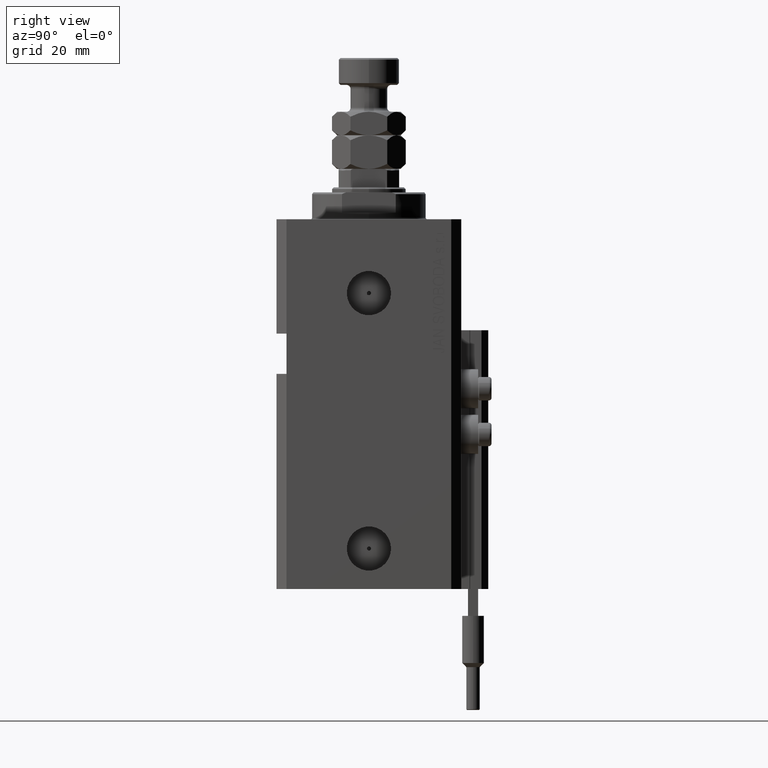
[diagram: clean part render]
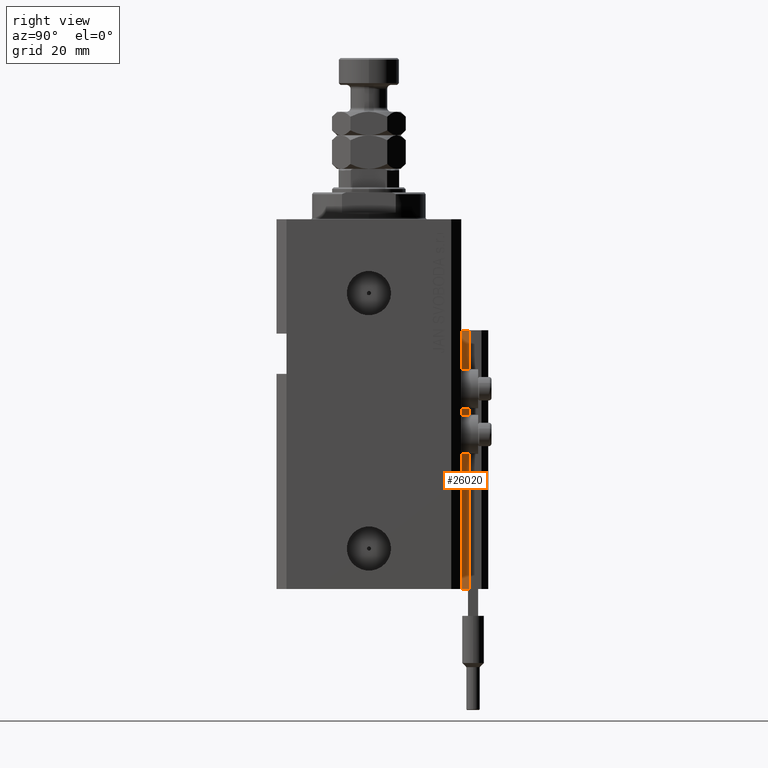
[diagram: same view with one face highlighted and labeled with its STEP entity id]
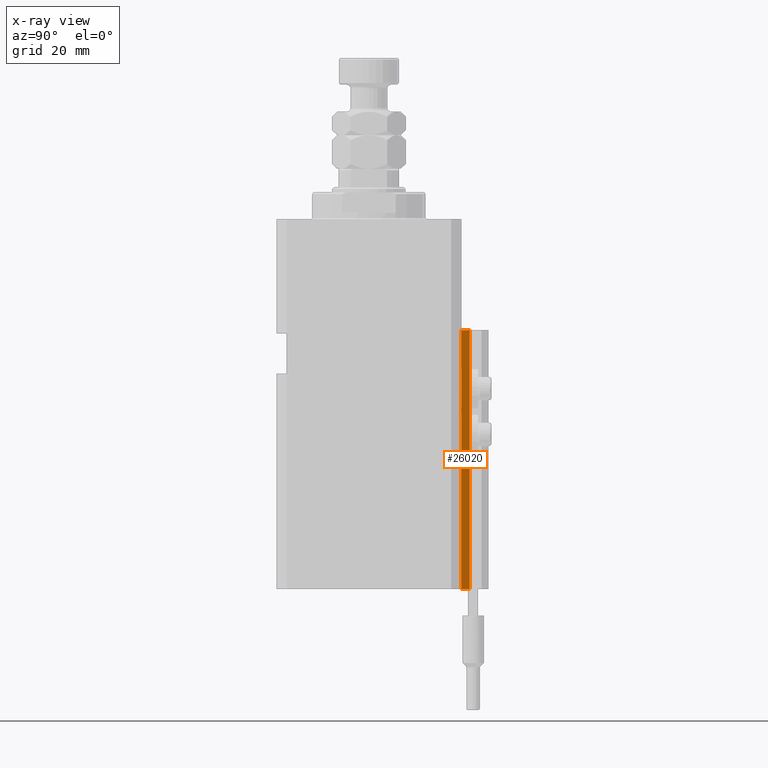
[diagram: x-ray of the same camera — body ghosted, the highlighted face saturated]
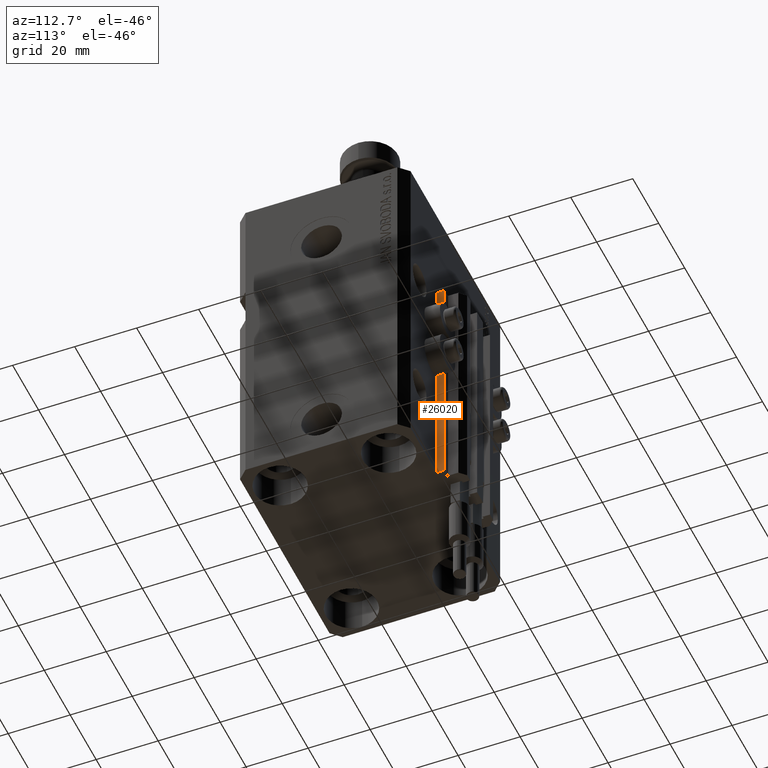
[diagram: same view with one face highlighted and labeled with its STEP entity id]
A machine part, right view. The second image highlights one B-rep face of the part: STEP entity #26020.
The next image is the same camera in x-ray: the body ghosted, the highlighted face saturated — about 0% of this face is hidden behind the body in this view.
A second angle (auxiliary view) of the same face is appended — the face is thin or edge-on in the first view.
In plain terms, the highlighted planar face has unit normal (1, 0, 0).
Its self-contained STEP definition (entity closure, byte-faithful):
#3454 = CARTESIAN_POINT ( 'NONE',  ( 14.49999999999999645, 30.00000000000002487, -110.0000000000000000 ) ) ;
#3615 = DIRECTION ( 'NONE',  ( 0.000000000000000000, 1.000000000000000000, 0.000000000000000000 ) ) ;
#4070 = EDGE_CURVE ( 'NONE', #39258, #21296, #20375, .T. ) ;
#6015 = CARTESIAN_POINT ( 'NONE',  ( 14.49999999999999645, 27.50000000000000355, -110.0000000000000000 ) ) ;
#7579 = CARTESIAN_POINT ( 'NONE',  ( 14.49999999999999645, 27.50000000000000355, -33.00000000000000000 ) ) ;
#8992 = DIRECTION ( 'NONE',  ( 0.000000000000000000, 0.000000000000000000, -1.000000000000000000 ) ) ;
#9664 = VERTEX_POINT ( 'NONE', #46722 ) ;
#12283 = ORIENTED_EDGE ( 'NONE', *, *, #35745, .T. ) ;
#12765 = FACE_OUTER_BOUND ( 'NONE', #27485, .T. ) ;
#12915 = DIRECTION ( 'NONE',  ( 0.000000000000000000, 0.000000000000000000, 1.000000000000000000 ) ) ;
#12941 = CARTESIAN_POINT ( 'NONE',  ( 14.49999999999999645, 27.50000000000000355, -110.0000000000000000 ) ) ;
#13683 = DIRECTION ( 'NONE',  ( 0.000000000000000000, 1.000000000000000000, 0.000000000000000000 ) ) ;
#16701 = LINE ( 'NONE', #43423, #40973 ) ;
#17293 = AXIS2_PLACEMENT_3D ( 'NONE', #24846, #40246, #8992 ) ;
#20087 = EDGE_CURVE ( 'NONE', #21296, #9664, #26802, .T. ) ;
#20277 = ORIENTED_EDGE ( 'NONE', *, *, #39720, .T. ) ;
#20375 = LINE ( 'NONE', #6015, #34518 ) ;
#20974 = LINE ( 'NONE', #12941, #26375 ) ;
#21291 = VECTOR ( 'NONE', #3615, 1000.000000000000000 ) ;
#21296 = VERTEX_POINT ( 'NONE', #7579 ) ;
#24846 = CARTESIAN_POINT ( 'NONE',  ( 14.49999999999999645, 27.50000000000000355, -110.0000000000000000 ) ) ;
#26020 = ADVANCED_FACE ( 'NONE', ( #12765 ), #48307, .T. ) ;
#26375 = VECTOR ( 'NONE', #13683, 1000.000000000000000 ) ;
#26424 = CARTESIAN_POINT ( 'NONE',  ( 14.49999999999999645, 27.50000000000000355, -110.0000000000000000 ) ) ;
#26584 = ORIENTED_EDGE ( 'NONE', *, *, #20087, .F. ) ;
#26802 = LINE ( 'NONE', #34361, #21291 ) ;
#27485 = EDGE_LOOP ( 'NONE', ( #26584, #31505, #12283, #20277 ) ) ;
#31505 = ORIENTED_EDGE ( 'NONE', *, *, #4070, .F. ) ;
#34361 = CARTESIAN_POINT ( 'NONE',  ( 14.49999999999999645, 27.50000000000000355, -33.00000000000000000 ) ) ;
#34518 = VECTOR ( 'NONE', #35766, 1000.000000000000000 ) ;
#35274 = VERTEX_POINT ( 'NONE', #3454 ) ;
#35745 = EDGE_CURVE ( 'NONE', #39258, #35274, #20974, .T. ) ;
#35766 = DIRECTION ( 'NONE',  ( 0.000000000000000000, 0.000000000000000000, 1.000000000000000000 ) ) ;
#39258 = VERTEX_POINT ( 'NONE', #26424 ) ;
#39720 = EDGE_CURVE ( 'NONE', #35274, #9664, #16701, .T. ) ;
#40246 = DIRECTION ( 'NONE',  ( 1.000000000000000000, 0.000000000000000000, 0.000000000000000000 ) ) ;
#40973 = VECTOR ( 'NONE', #12915, 1000.000000000000000 ) ;
#43423 = CARTESIAN_POINT ( 'NONE',  ( 14.49999999999999645, 30.00000000000002487, -110.0000000000000000 ) ) ;
#46722 = CARTESIAN_POINT ( 'NONE',  ( 14.49999999999999645, 30.00000000000002487, -33.00000000000000000 ) ) ;
#48307 = PLANE ( 'NONE',  #17293 ) ;